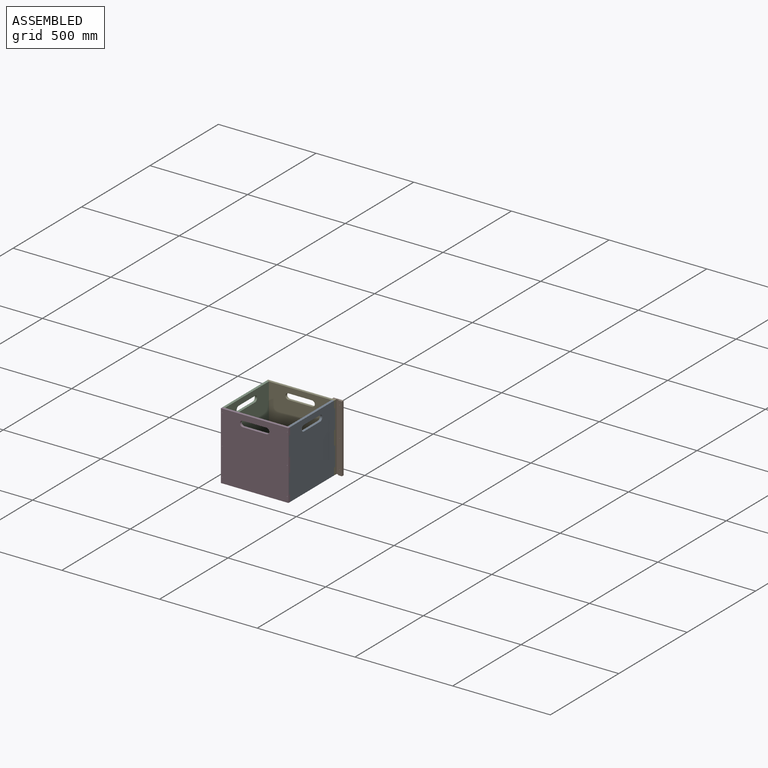
[diagram: assembled view]
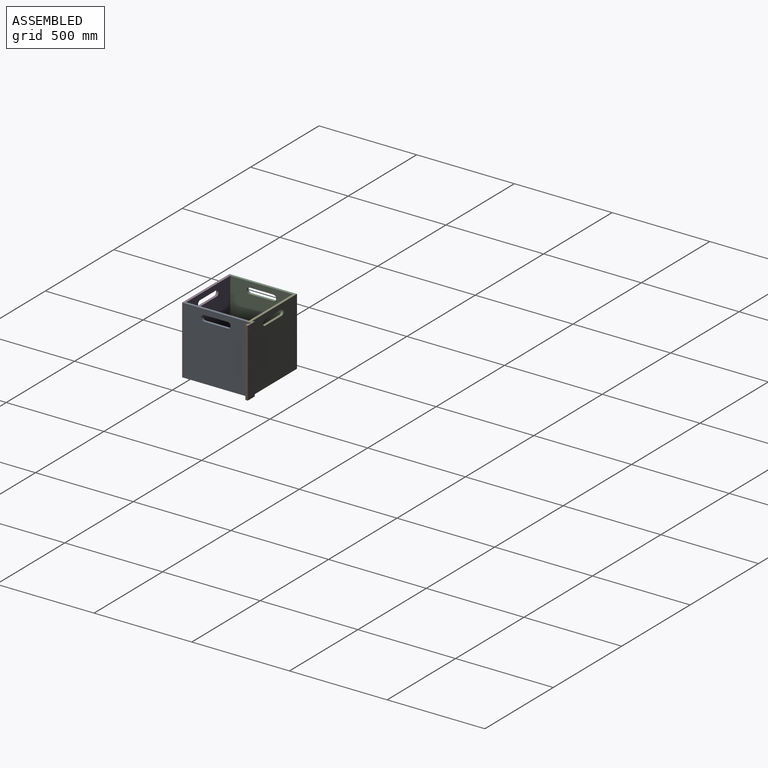
[diagram: assembled view, second angle]
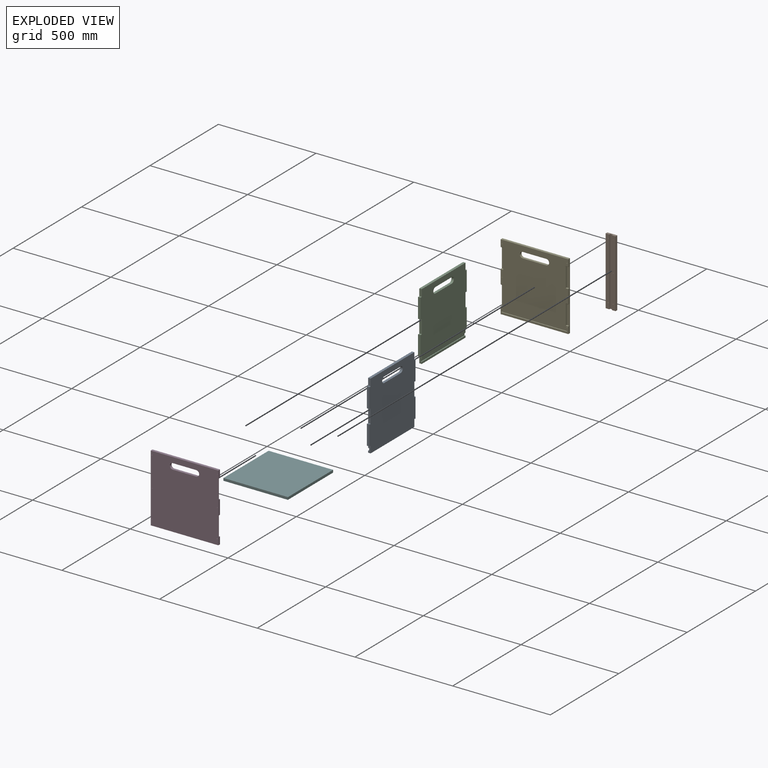
[diagram: exploded view]
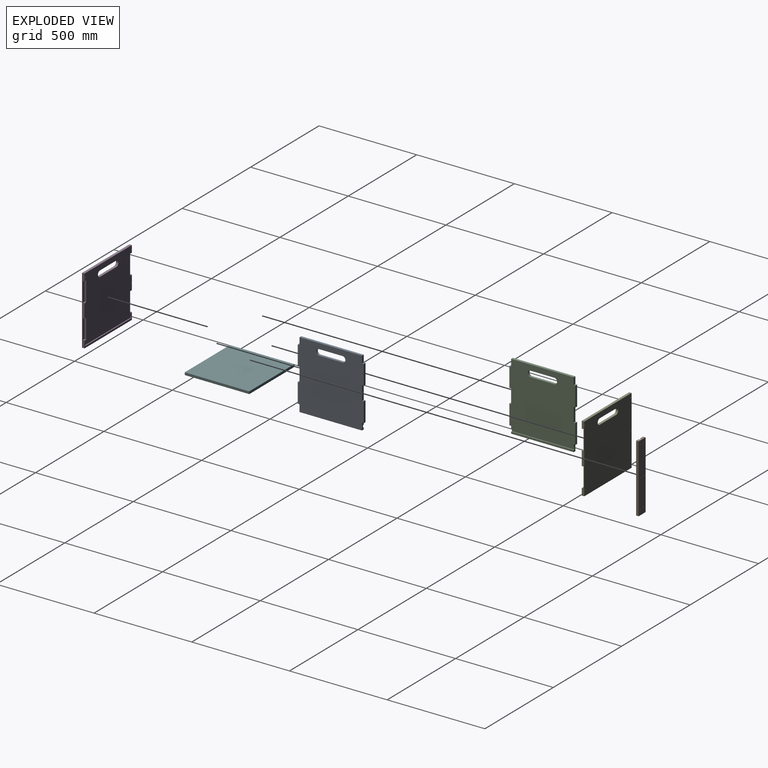
[diagram: exploded view, second angle]
ASSEMBLY  parts=6 mates=14
PART A: 38 faces, bbox 337.8x12.7x346 mm
  f0: plane 337.78x323.78mm, normal (0,-1,0), area 102867mm2, adj f2,f3,f5,f6,f7,f8,f9,f11
  f1: plane 346x337.78mm, normal (0,1,0), area 109979mm2, adj f2,f3,f4,f5,f6,f7,f8,f9
  f2: plane 34.21x12.7mm, normal (-1,0,0), area 369.9mm2, adj f0,f1,f4,f10,f18,f31,f32,f33
  f3: plane 34.21x12.7mm, normal (1,0,0), area 369.9mm2, adj f0,f1,f4,f10,f30,f31,f32,f33
  f4: plane 320x12.7mm, normal (0,0,-1), area 4064mm2, adj f1,f2,f3,f10
  f5: plane 320x12.7mm, normal (0,0,1), area 4064mm2, adj f0,f1,f6,f19
  f6: plane 34.21x12.7mm, normal (-1,0,0), area 434.4mm2, adj f0,f1,f5,f15
  f7: plane 101.32x12.7mm, normal (-1,0,0), area 1286.7mm2, adj f0,f1,f11,f12
  f8: plane 68.41x12.7mm, normal (-1,0,0), area 868.8mm2, adj f0,f1,f16,f17
  f9: plane 101.32x12.7mm, normal (-1,0,0), area 1286.7mm2, adj f0,f1,f13,f14
  f10: plane 320x9.53mm, normal (0,-1,0), area 3048mm2, adj f2,f3,f4,f31
  f11: plane 12.7x5.88mm, normal (0.16,0,0.99), area 75.6mm2, adj f0,f1,f7,f15
  f12: plane 12.7x5.88mm, normal (0.16,0,-0.99), area 75.6mm2, adj f0,f1,f7,f16
  f13: plane 12.7x5.88mm, normal (0.16,0,0.99), area 75.6mm2, adj f0,f1,f9,f17
  f14: plane 12.7x5.88mm, normal (0.16,0,-0.99), area 75.6mm2, adj f0,f1,f9,f18
  f15: cylinder r=2.6mm len=12.7mm, axis (0,1,0), area 57.1mm2, adj f0,f1,f6,f11
  f16: cylinder r=2.6mm len=12.7mm, axis (0,1,0), area 57.1mm2, adj f0,f1,f8,f12
  f17: cylinder r=2.6mm len=12.7mm, axis (0,-1,0), area 57.1mm2, adj f0,f1,f8,f13
  f18: cylinder r=2.6mm len=12.7mm, axis (0,-1,0), area 57.1mm2, adj f0,f1,f2,f14
  f19: plane 34.21x12.7mm, normal (1,0,0), area 434.4mm2, adj f0,f1,f5,f27
  f20: plane 101.32x12.7mm, normal (1,0,0), area 1286.7mm2, adj f0,f1,f23,f24
  f21: plane 68.41x12.7mm, normal (1,0,0), area 868.8mm2, adj f0,f1,f28,f29
  f22: plane 101.32x12.7mm, normal (1,0,0), area 1286.7mm2, adj f0,f1,f25,f26
  f23: plane 12.7x5.88mm, normal (-0.16,0,0.99), area 75.6mm2, adj f0,f1,f20,f27
  f24: plane 12.7x5.88mm, normal (-0.16,0,-0.99), area 75.6mm2, adj f0,f1,f20,f28
  f25: plane 12.7x5.88mm, normal (-0.16,0,0.99), area 75.6mm2, adj f0,f1,f22,f29
  f26: plane 12.7x5.88mm, normal (-0.16,0,-0.99), area 75.6mm2, adj f0,f1,f22,f30
  f27: cylinder r=2.6mm len=12.7mm, axis (0,1,0), area 57.1mm2, adj f0,f1,f19,f23
  f28: cylinder r=2.6mm len=12.7mm, axis (0,1,0), area 57.1mm2, adj f0,f1,f21,f24
  f29: cylinder r=2.6mm len=12.7mm, axis (0,-1,0), area 57.1mm2, adj f0,f1,f21,f25
  f30: cylinder r=2.6mm len=12.7mm, axis (0,-1,0), area 57.1mm2, adj f0,f1,f3,f26
  f31: plane 320x5.08mm, normal (0,0,1), area 1625.6mm2, adj f2,f3,f10,f33
  f32: plane 320x5.08mm, normal (0,0,-1), area 1625.6mm2, adj f0,f2,f3,f33
  f33: plane 320x12.7mm, normal (0,-1,0), area 4064mm2, adj f2,f3,f31,f32
  f34: plane 119.99x12.7mm, normal (0,0,-1), area 1523.9mm2, adj f0,f1,f35,f37
  f35: cylinder r=15.01mm len=30.02mm, axis (0,-1,0), area 598.9mm2, adj f0,f1,f34,f36
  f36: plane 119.99x12.7mm, normal (0,0,1), area 1523.9mm2, adj f0,f1,f35,f37
  f37: cylinder r=15.01mm len=30.02mm, axis (0,-1,0), area 598.9mm2, adj f0,f1,f34,f36
PART B: 16 faces, bbox 50.8x12.7x346 mm
  f0: plane 346x19.05mm, normal (0,-1,0), area 6567.5mm2, adj f1,f2,f3,f7,f13,f14,f15
  f1: plane 50.8x12.7mm, normal (0,0,-1), area 564.5mm2, adj f0,f2,f4,f5,f6,f7,f8,f9
  f2: plane 346x12.7mm, normal (1,0,0), area 4394.2mm2, adj f0,f1,f3,f6
  f3: plane 50.8x12.7mm, normal (0,0,1), area 564.5mm2, adj f0,f2,f4,f5,f6,f7,f8,f9
  f4: plane 346x12.7mm, normal (-1,0,0), area 4394.2mm2, adj f1,f3,f5,f6
  f5: plane 346x19.05mm, normal (0,-1,0), area 6567.5mm2, adj f1,f3,f4,f8,f10,f11,f12
  f6: plane 346x50.8mm, normal (0,1,0), area 17529.2mm2, adj f1,f2,f3,f4,f10,f11,f12,f13
  f7: plane 346x6.35mm, normal (-1,0,0), area 2197.1mm2, adj f0,f1,f3,f9
  f8: plane 346x6.35mm, normal (1,0,0), area 2197.1mm2, adj f1,f3,f5,f9
  f9: plane 346x12.7mm, normal (0,-1,0), area 4394.2mm2, adj f1,f3,f7,f8
  f10: cylinder r=1.59mm len=12.7mm, axis (0,-1,0), area 126.7mm2, adj f5,f6
  f11: cylinder r=1.59mm len=12.7mm, axis (0,-1,0), area 126.7mm2, adj f5,f6
  f12: cylinder r=1.59mm len=12.7mm, axis (0,-1,0), area 126.7mm2, adj f5,f6
  f13: cylinder r=1.59mm len=12.7mm, axis (0,-1,0), area 126.7mm2, adj f0,f6
  f14: cylinder r=1.59mm len=12.7mm, axis (0,-1,0), area 126.7mm2, adj f0,f6
  f15: cylinder r=1.59mm len=12.7mm, axis (0,-1,0), area 126.7mm2, adj f0,f6
PART C: same geometry as A
PART D: 49 faces, bbox 346x12.7x346 mm
  f0: plane 346x346mm, normal (0,1,0), area 105792.6mm2, adj f2,f3,f4,f8,f9,f10,f11,f15
  f1: plane 346x346mm, normal (0,-1,0), area 115361.2mm2, adj f2,f3,f10,f17,f30,f31,f32,f33
  f2: plane 346x12.7mm, normal (-1,0,0), area 2609.6mm2, adj f0,f1,f3,f5,f6,f7,f8,f9
  f3: plane 346x12.7mm, normal (0,0,-1), area 4394.2mm2, adj f0,f1,f2,f10
  f4: plane 104.57x8.89mm, normal (-1,0,0), area 892.3mm2, adj f0,f5,f6,f7,f8,f9
  f5: plane 12.7x5.89mm, normal (0,-0.16,0.99), area 75.8mm2, adj f2,f4,f6,f9
  f6: plane 101.32x12.7mm, normal (0,1,0), area 1286.7mm2, adj f2,f4,f5,f7
  f7: plane 12.7x5.89mm, normal (0,-0.16,-0.99), area 75.8mm2, adj f2,f4,f6,f8
  f8: cylinder r=2.59mm len=12.7mm, axis (1,0,0), area 56.9mm2, adj f0,f2,f4,f7
  f9: cylinder r=2.59mm len=12.7mm, axis (-1,0,0), area 56.9mm2, adj f0,f2,f4,f5
  f10: plane 346x12.7mm, normal (1,0,0), area 2609.6mm2, adj f0,f1,f3,f12,f13,f14,f15,f16
  f11: plane 104.57x8.89mm, normal (1,0,0), area 892.3mm2, adj f0,f12,f13,f14,f15,f16
  f12: plane 12.7x5.89mm, normal (0,-0.16,0.99), area 75.8mm2, adj f10,f11,f13,f16
  f13: plane 101.32x12.7mm, normal (0,1,0), area 1286.7mm2, adj f10,f11,f12,f14
  f14: plane 12.7x5.89mm, normal (0,-0.16,-0.99), area 75.8mm2, adj f10,f11,f13,f15
  f15: cylinder r=2.59mm len=12.7mm, axis (-1,0,0), area 56.9mm2, adj f0,f10,f11,f14
  f16: cylinder r=2.59mm len=12.7mm, axis (1,0,0), area 56.9mm2, adj f0,f10,f11,f12
  f17: plane 346x12.7mm, normal (0,0,1), area 4394.2mm2, adj f0,f1,f2,f10
  f18: plane 104.57x8.89mm, normal (-1,0,0), area 892.3mm2, adj f0,f19,f20,f21,f22,f23
  f19: plane 12.7x5.89mm, normal (0,-0.16,-0.99), area 75.8mm2, adj f2,f18,f20,f23
  f20: plane 101.32x12.7mm, normal (0,1,0), area 1286.7mm2, adj f2,f18,f19,f21
  f21: plane 12.7x5.89mm, normal (0,-0.16,0.99), area 75.8mm2, adj f2,f18,f20,f22
  f22: cylinder r=2.59mm len=12.7mm, axis (1,0,0), area 56.9mm2, adj f0,f2,f18,f21
  f23: cylinder r=2.59mm len=12.7mm, axis (-1,0,0), area 56.9mm2, adj f0,f2,f18,f19
  f24: plane 104.57x8.89mm, normal (1,0,0), area 892.3mm2, adj f0,f25,f26,f27,f28,f29
  f25: plane 12.7x5.89mm, normal (0,-0.16,-0.99), area 75.8mm2, adj f10,f24,f26,f29
  f26: plane 101.32x12.7mm, normal (0,1,0), area 1286.7mm2, adj f10,f24,f25,f27
  f27: plane 12.7x5.89mm, normal (0,-0.16,0.99), area 75.8mm2, adj f10,f24,f26,f28
  f28: cylinder r=2.59mm len=12.7mm, axis (-1,0,0), area 56.9mm2, adj f0,f10,f24,f27
  f29: cylinder r=2.59mm len=12.7mm, axis (1,0,0), area 56.9mm2, adj f0,f10,f24,f25
  f30: plane 120x12.7mm, normal (0,0,-1), area 1524mm2, adj f0,f1,f31,f33
  f31: cylinder r=15mm len=30mm, axis (0,-1,0), area 598.5mm2, adj f0,f1,f30,f32
  f32: plane 120x12.7mm, normal (0,0,1), area 1524mm2, adj f0,f1,f31,f33
  f33: cylinder r=15mm len=30mm, axis (0,-1,0), area 598.5mm2, adj f0,f1,f30,f32
  f34: plane 329.49x5.08mm, normal (0,0,-1), area 1673.8mm2, adj f0,f38,f39,f42
  f35: plane 6.35x5.08mm, normal (-1,0,0), area 32.3mm2, adj f0,f38,f39,f40
  f36: plane 329.49x5.08mm, normal (0,0,1), area 1673.8mm2, adj f0,f38,f40,f41
  f37: plane 6.35x5.08mm, normal (1,0,0), area 32.3mm2, adj f0,f38,f41,f42
  f38: plane 335.84x12.7mm, normal (0,1,0), area 4256.5mm2, adj f34,f35,f36,f37,f39,f40,f41,f42
  f39: cylinder r=3.17mm len=5.08mm, axis (0,1,0), area 25.3mm2, adj f0,f34,f35,f38
  f40: cylinder r=3.17mm len=5.08mm, axis (0,-1,0), area 25.3mm2, adj f0,f35,f36,f38
  f41: cylinder r=3.17mm len=5.08mm, axis (0,1,0), area 25.3mm2, adj f0,f36,f37,f38
  f42: cylinder r=3.17mm len=5.08mm, axis (0,-1,0), area 25.3mm2, adj f0,f34,f37,f38
  f43: cylinder r=1.59mm len=12.7mm, axis (0,1,0), area 126.7mm2, adj f0,f1
  f44: cylinder r=1.59mm len=12.7mm, axis (0,1,0), area 126.7mm2, adj f0,f1
  f45: cylinder r=1.59mm len=12.7mm, axis (0,1,0), area 126.7mm2, adj f0,f1
  f46: cylinder r=1.59mm len=12.7mm, axis (0,1,0), area 126.7mm2, adj f0,f1
  f47: cylinder r=1.59mm len=12.7mm, axis (0,1,0), area 126.7mm2, adj f0,f1
  f48: cylinder r=1.59mm len=12.7mm, axis (0,1,0), area 126.7mm2, adj f0,f1
PART E: same geometry as D
PART F: 6 faces, bbox 330.2x12.7x330.2 mm
  f0: plane 330.2x12.7mm, normal (0,0,-1), area 4193.5mm2, adj f1,f3,f4,f5
  f1: plane 330.2x12.7mm, normal (1,0,0), area 4193.5mm2, adj f0,f2,f4,f5
  f2: plane 330.2x12.7mm, normal (0,0,1), area 4193.5mm2, adj f1,f3,f4,f5
  f3: plane 330.2x12.7mm, normal (-1,0,0), area 4193.5mm2, adj f0,f2,f4,f5
  f4: plane 330.2x330.2mm, normal (0,-1,0), area 109032mm2, adj f0,f1,f2,f3
  f5: plane 330.2x330.2mm, normal (0,1,0), area 109032mm2, adj f0,f1,f2,f3
PLACE A rot(axis=(0,0,-1),90deg) t=(449.06,347.68,-392.35)mm
PLACE B t=(455.41,373.08,-219.35)mm
PLACE C rot(axis=(0,0,1),90deg) t=(103.06,27.68,-392.35)mm
PLACE D t=(103.06,27.68,-392.35)mm
PLACE E rot(axis=(0,0,-1),180deg) t=(449.06,347.68,-392.35)mm
PLACE F rot(axis=(-1,0,0),90deg) t=(276.06,187.66,-382.83)mm
MATE planar E.f38 <-> F.f2  axis (0,-1,0) through (276.06,352.76,-376.48)mm
MATE planar E.f0 <-> A.f6  axis (0,-1,0) through (449.06,347.68,-46.35)mm
MATE planar B.f5 <-> E.f1  axis (0,-1,0) through (439.52,360.38,-219.37)mm
MATE planar F.f5 <-> D.f36  axis (0,0,-1) through (276.06,187.66,-382.83)mm
MATE planar A.f19 <-> D.f0  axis (0,-1,0) through (442.71,27.68,-63.46)mm
MATE planar C.f5 <-> E.f17  axis (0,0,1) through (109.41,187.68,-46.35)mm
MATE planar C.f6 <-> D.f0  axis (0,-1,0) through (115.76,27.68,-63.46)mm
MATE planar A.f5 <-> D.f17  axis (0,0,1) through (442.71,187.68,-46.35)mm
MATE planar D.f17 <-> C.f5  axis (0,0,1) through (276.06,21.33,-46.35)mm
MATE planar B.f8 <-> E.f2  axis (1,0,0) through (449.06,363.55,-219.35)mm
MATE planar E.f2 <-> A.f1  axis (1,0,0) through (449.06,356.57,-183.51)mm
MATE planar B.f3 <-> E.f17  axis (0,0,1) through (455.41,367.18,-46.35)mm
MATE planar A.f0 <-> D.f24  axis (-1,0,0) through (436.36,24.67,-83.13)mm
MATE planar D.f2 <-> C.f1  axis (-1,0,0) through (103.06,20.03,-219.35)mm
